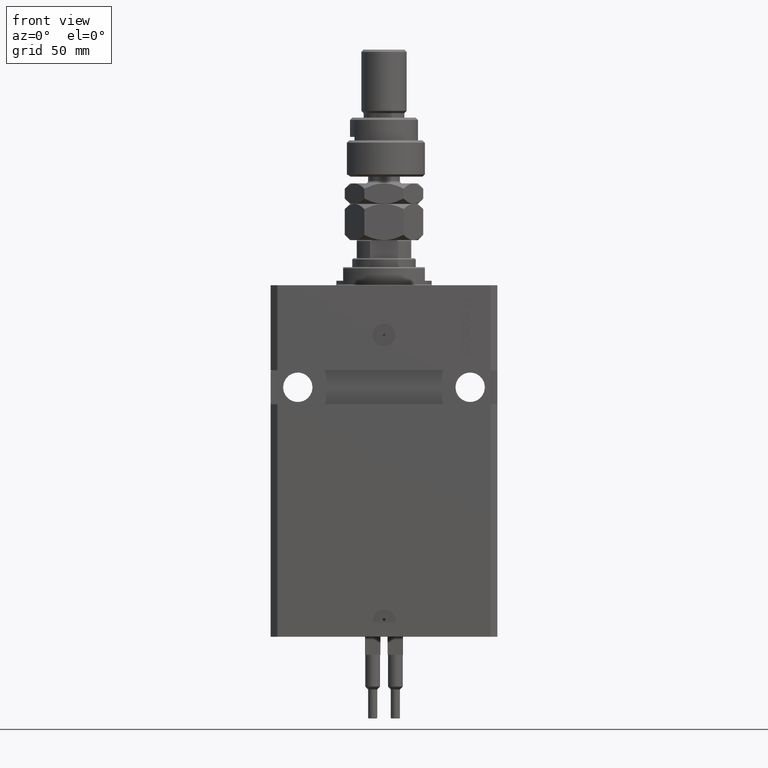
[diagram: clean part render]
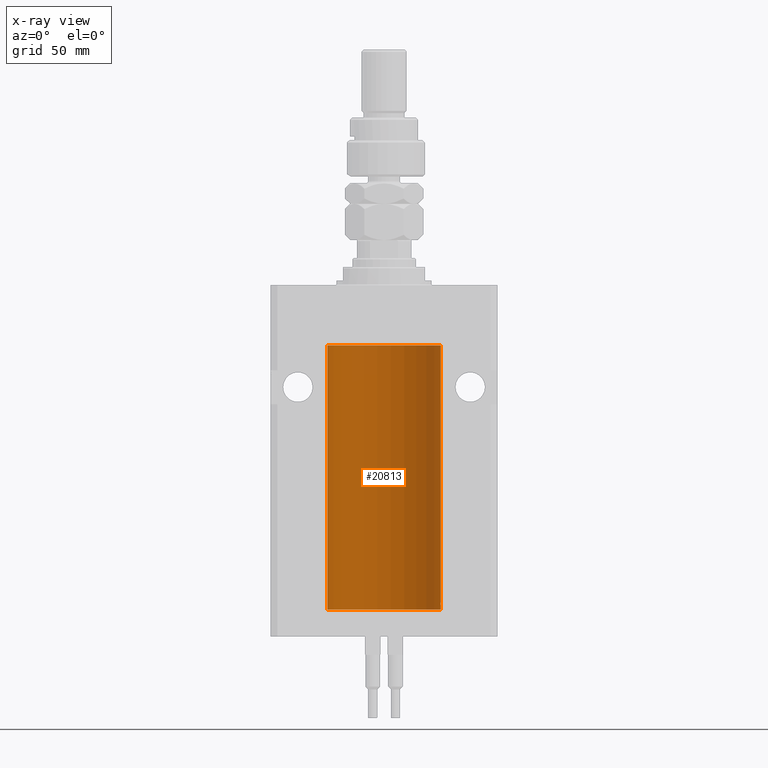
[diagram: x-ray — body ghosted, one internal face saturated and labeled with its STEP entity id]
A machine part, front view, then the same camera in x-ray: the body is ghosted and one INTERNAL B-rep face — a face not visible from any outside direction — is saturated and labeled: STEP entity #20813.
In plain terms, the highlighted cylindrical surface (partial cylindrical patch) has radius 25 mm, axis along (0, 0, 1).
Its self-contained STEP definition (entity closure, byte-faithful):
#124 = CARTESIAN_POINT ( 'NONE',  ( 24.99815573945175373, 0.3253059702579825241, -139.9414084843268711 ) ) ;
#864 = CARTESIAN_POINT ( 'NONE',  ( 0.000000000000000000, 0.000000000000000000, -143.0999999999999943 ) ) ;
#1155 = CARTESIAN_POINT ( 'NONE',  ( 25.00000000000000000, 0.000000000000000000, -143.0999999999999943 ) ) ;
#1379 = EDGE_CURVE ( 'NONE', #27125, #9984, #18171, .T. ) ;
#2095 = VERTEX_POINT ( 'NONE', #23986 ) ;
#2577 = ORIENTED_EDGE ( 'NONE', *, *, #24920, .T. ) ;
#2688 = VECTOR ( 'NONE', #14540, 1000.000000000000000 ) ;
#2905 = ORIENTED_EDGE ( 'NONE', *, *, #39060, .T. ) ;
#3312 = EDGE_CURVE ( 'NONE', #2095, #41624, #13738, .T. ) ;
#3359 = CARTESIAN_POINT ( 'NONE',  ( 24.99957883295564898, 0.1636780489658682114, -141.1087296133423195 ) ) ;
#4010 = DIRECTION ( 'NONE',  ( 0.000000000000000000, 0.000000000000000000, 1.000000000000000000 ) ) ;
#4166 = CIRCLE ( 'NONE', #49374, 25.00000000000000000 ) ;
#5867 = EDGE_CURVE ( 'NONE', #41624, #20585, #42248, .T. ) ;
#7036 = CARTESIAN_POINT ( 'NONE',  ( 24.99812887437770570, 0.3150953964768980486, -141.0459460934856111 ) ) ;
#8097 = CARTESIAN_POINT ( 'NONE',  ( -24.99405295648007552, 0.5573304927633233596, -140.1734883293366067 ) ) ;
#8425 = ORIENTED_EDGE ( 'NONE', *, *, #13191, .T. ) ;
#9038 = ORIENTED_EDGE ( 'NONE', *, *, #47352, .F. ) ;
#9984 = VERTEX_POINT ( 'NONE', #10898 ) ;
#10606 = ORIENTED_EDGE ( 'NONE', *, *, #43030, .T. ) ;
#10898 = CARTESIAN_POINT ( 'NONE',  ( -25.00000000000000000, 3.061616997868383043E-15, -26.60000000000000142 ) ) ;
#12038 = CARTESIAN_POINT ( 'NONE',  ( -24.99711159039964059, 0.3843660423108676838, -140.0004619305507561 ) ) ;
#12187 = CARTESIAN_POINT ( 'NONE',  ( 24.99218627891505307, 0.6250000000082404084, -140.4999999999990337 ) ) ;
#12639 = CARTESIAN_POINT ( 'NONE',  ( -25.00000000000000000, 3.061616997868383043E-15, -143.0999999999999943 ) ) ;
#13191 = EDGE_CURVE ( 'NONE', #27125, #28127, #16572, .T. ) ;
#13432 = AXIS2_PLACEMENT_3D ( 'NONE', #28799, #31699, #24618 ) ;
#13623 = VECTOR ( 'NONE', #33375, 1000.000000000000000 ) ;
#13654 = CARTESIAN_POINT ( 'NONE',  ( -25.00000000000008171, 3.517566533863564531E-13, -141.1250000000032685 ) ) ;
#13738 = LINE ( 'NONE', #38889, #25407 ) ;
#14540 = DIRECTION ( 'NONE',  ( -0.000000000000000000, -0.000000000000000000, 1.000000000000000000 ) ) ;
#14770 = CARTESIAN_POINT ( 'NONE',  ( 25.00000000000008171, 3.486950366684838397E-13, -139.8749999999966747 ) ) ;
#15009 = VERTEX_POINT ( 'NONE', #14770 ) ;
#16239 = FACE_OUTER_BOUND ( 'NONE', #45788, .T. ) ;
#16566 = LINE ( 'NONE', #12639, #39442 ) ;
#16572 = B_SPLINE_CURVE_WITH_KNOTS ( 'NONE', 3,
 ( #40597, #31952, #20410, #47952, #12038, #8097, #24098, #36401, #32464, #37446, #17778, #37968 ),
 .UNSPECIFIED., .F., .F.,
 ( 4, 2, 2, 2, 2, 4 ),
 ( 4.721047839748243682E-18, 0.0002442639708601545201, 0.0004885279417203043780, 0.0009770558834406627494, 0.001465583825161021012, 0.001954111766881379275 ),
 .UNSPECIFIED. ) ;
#17778 = CARTESIAN_POINT ( 'NONE',  ( -25.00000000000000355, 0.1631672031814576096, -141.1249999999998579 ) ) ;
#18171 = LINE ( 'NONE', #26554, #13623 ) ;
#19605 = CARTESIAN_POINT ( 'NONE',  ( 24.99218627891505307, 0.6250000000082404084, -140.4999999999990337 ) ) ;
#20020 = DIRECTION ( 'NONE',  ( 0.000000000000000000, 0.000000000000000000, 1.000000000000000000 ) ) ;
#20410 = CARTESIAN_POINT ( 'NONE',  ( -24.99957903978827289, 0.1636401650351609061, -139.8912625904797835 ) ) ;
#20585 = VERTEX_POINT ( 'NONE', #31193 ) ;
#20684 = CYLINDRICAL_SURFACE ( 'NONE', #13432, 25.00000000000000000 ) ;
#20813 = ADVANCED_FACE ( 'NONE', ( #16239 ), #20684, .F. ) ;
#23032 = CARTESIAN_POINT ( 'NONE',  ( 24.99711042419772156, 0.3844422150124143789, -140.9994823321251260 ) ) ;
#23546 = ORIENTED_EDGE ( 'NONE', *, *, #3312, .T. ) ;
#23944 = DIRECTION ( 'NONE',  ( 1.000000000000000000, 0.000000000000000000, 0.000000000000000000 ) ) ;
#23986 = CARTESIAN_POINT ( 'NONE',  ( 25.00000000000000000, 0.000000000000000000, -143.0999999999999943 ) ) ;
#24098 = CARTESIAN_POINT ( 'NONE',  ( -24.99218772708281477, 0.6249420913990210158, -140.3367120696675556 ) ) ;
#24618 = DIRECTION ( 'NONE',  ( 1.000000000000000000, 0.000000000000000000, 0.000000000000000000 ) ) ;
#24920 = EDGE_CURVE ( 'NONE', #20585, #15009, #28692, .T. ) ;
#25407 = VECTOR ( 'NONE', #33912, 1000.000000000000000 ) ;
#26554 = CARTESIAN_POINT ( 'NONE',  ( -25.00000000000000000, 3.061616997868383043E-15, -143.0999999999999943 ) ) ;
#26747 = ORIENTED_EDGE ( 'NONE', *, *, #1379, .F. ) ;
#27125 = VERTEX_POINT ( 'NONE', #34848 ) ;
#27478 = CARTESIAN_POINT ( 'NONE',  ( 24.99218627891525912, 0.6250000000003231859, -140.6631061550482684 ) ) ;
#28127 = VERTEX_POINT ( 'NONE', #13654 ) ;
#28692 = B_SPLINE_CURVE_WITH_KNOTS ( 'NONE', 3,
 ( #12187, #32099, #44154, #124, #43391, #31588 ),
 .UNSPECIFIED., .F., .F.,
 ( 4, 2, 4 ),
 ( 0.0009772773786619198821, 0.001465694572771615535, 0.001954111766881311187 ),
 .UNSPECIFIED. ) ;
#28799 = CARTESIAN_POINT ( 'NONE',  ( 0.000000000000000000, 0.000000000000000000, -143.0999999999999943 ) ) ;
#28897 = CARTESIAN_POINT ( 'NONE',  ( 0.000000000000000000, 0.000000000000000000, -26.60000000000000142 ) ) ;
#31193 = CARTESIAN_POINT ( 'NONE',  ( 24.99218627891505307, 0.6250000000082404084, -140.4999999999990337 ) ) ;
#31588 = CARTESIAN_POINT ( 'NONE',  ( 25.00000000000008171, 3.486950366684838397E-13, -139.8749999999966747 ) ) ;
#31668 = ORIENTED_EDGE ( 'NONE', *, *, #40953, .F. ) ;
#31699 = DIRECTION ( 'NONE',  ( -0.000000000000000000, -0.000000000000000000, 1.000000000000000000 ) ) ;
#31875 = VERTEX_POINT ( 'NONE', #49877 ) ;
#31952 = CARTESIAN_POINT ( 'NONE',  ( -25.00000000000001066, 0.08259386895069469048, -139.8750000000000000 ) ) ;
#32099 = CARTESIAN_POINT ( 'NONE',  ( 24.99218627891526268, 0.6249999999996136424, -140.3369677794013057 ) ) ;
#32103 = VERTEX_POINT ( 'NONE', #32511 ) ;
#32464 = CARTESIAN_POINT ( 'NONE',  ( -24.99402840204668053, 0.5587119681668447635, -140.8251155587110190 ) ) ;
#32480 = ORIENTED_EDGE ( 'NONE', *, *, #5867, .T. ) ;
#32511 = CARTESIAN_POINT ( 'NONE',  ( -25.00000000000000000, 3.061616997868383043E-15, -143.0999999999999943 ) ) ;
#33375 = DIRECTION ( 'NONE',  ( -0.000000000000000000, -0.000000000000000000, 1.000000000000000000 ) ) ;
#33912 = DIRECTION ( 'NONE',  ( -0.000000000000000000, -0.000000000000000000, 1.000000000000000000 ) ) ;
#34848 = CARTESIAN_POINT ( 'NONE',  ( -25.00000000000000000, -2.240465332326360227E-14, -139.8749999999999716 ) ) ;
#35168 = CIRCLE ( 'NONE', #36027, 25.00000000000000000 ) ;
#36027 = AXIS2_PLACEMENT_3D ( 'NONE', #28897, #4010, #23944 ) ;
#36401 = CARTESIAN_POINT ( 'NONE',  ( -24.99218483271614843, 0.6250578298876459105, -140.6628443277814142 ) ) ;
#37446 = CARTESIAN_POINT ( 'NONE',  ( -24.99815474281803063, 0.3253832813992108552, -141.0585560939375682 ) ) ;
#37968 = CARTESIAN_POINT ( 'NONE',  ( -25.00000000000008171, 3.517566533863564531E-13, -141.1250000000032685 ) ) ;
#38889 = CARTESIAN_POINT ( 'NONE',  ( 25.00000000000000000, 0.000000000000000000, -143.0999999999999943 ) ) ;
#39020 = CARTESIAN_POINT ( 'NONE',  ( 24.99405112861447620, 0.5574133879603465624, -140.8263877786897922 ) ) ;
#39060 = EDGE_CURVE ( 'NONE', #31875, #9984, #35168, .T. ) ;
#39442 = VECTOR ( 'NONE', #41196, 1000.000000000000000 ) ;
#40597 = CARTESIAN_POINT ( 'NONE',  ( -25.00000000000000000, -2.240465332326360227E-14, -139.8749999999999716 ) ) ;
#40953 = EDGE_CURVE ( 'NONE', #32103, #28127, #16566, .T. ) ;
#40979 = DIRECTION ( 'NONE',  ( 1.000000000000000000, 0.000000000000000000, 0.000000000000000000 ) ) ;
#41019 = LINE ( 'NONE', #1155, #2688 ) ;
#41196 = DIRECTION ( 'NONE',  ( -0.000000000000000000, -0.000000000000000000, 1.000000000000000000 ) ) ;
#41624 = VERTEX_POINT ( 'NONE', #42621 ) ;
#42248 = B_SPLINE_CURVE_WITH_KNOTS ( 'NONE', 3,
 ( #43457, #42938, #3359, #7036, #23032, #39020, #27478, #19605 ),
 .UNSPECIFIED., .F., .F.,
 ( 4, 2, 2, 4 ),
 ( 2.541064289066469745E-18, 0.0002443193446654819763, 0.0004886386893309612421, 0.0009772773786619198821 ),
 .UNSPECIFIED. ) ;
#42621 = CARTESIAN_POINT ( 'NONE',  ( 25.00000000000000000, 2.614778811499482268E-15, -141.1249999999999716 ) ) ;
#42938 = CARTESIAN_POINT ( 'NONE',  ( 25.00000000000000355, 0.08261259269783456649, -141.1249999999999716 ) ) ;
#43030 = EDGE_CURVE ( 'NONE', #15009, #31875, #41019, .T. ) ;
#43391 = CARTESIAN_POINT ( 'NONE',  ( 24.99999999999999645, 0.1631302137355212234, -139.8750000000001137 ) ) ;
#43457 = CARTESIAN_POINT ( 'NONE',  ( 25.00000000000000000, 2.614778811499482268E-15, -141.1249999999999716 ) ) ;
#44154 = CARTESIAN_POINT ( 'NONE',  ( 24.99403021173655404, 0.5586305782632735584, -140.1747611144148209 ) ) ;
#45788 = EDGE_LOOP ( 'NONE', ( #31668, #9038, #23546, #32480, #2577, #10606, #2905, #26747, #8425 ) ) ;
#47352 = EDGE_CURVE ( 'NONE', #2095, #32103, #4166, .T. ) ;
#47952 = CARTESIAN_POINT ( 'NONE',  ( -24.99812965334070114, 0.3150303239408628886, -139.9540190183167283 ) ) ;
#49374 = AXIS2_PLACEMENT_3D ( 'NONE', #864, #20020, #40979 ) ;
#49877 = CARTESIAN_POINT ( 'NONE',  ( 25.00000000000000000, 0.000000000000000000, -26.60000000000000142 ) ) ;